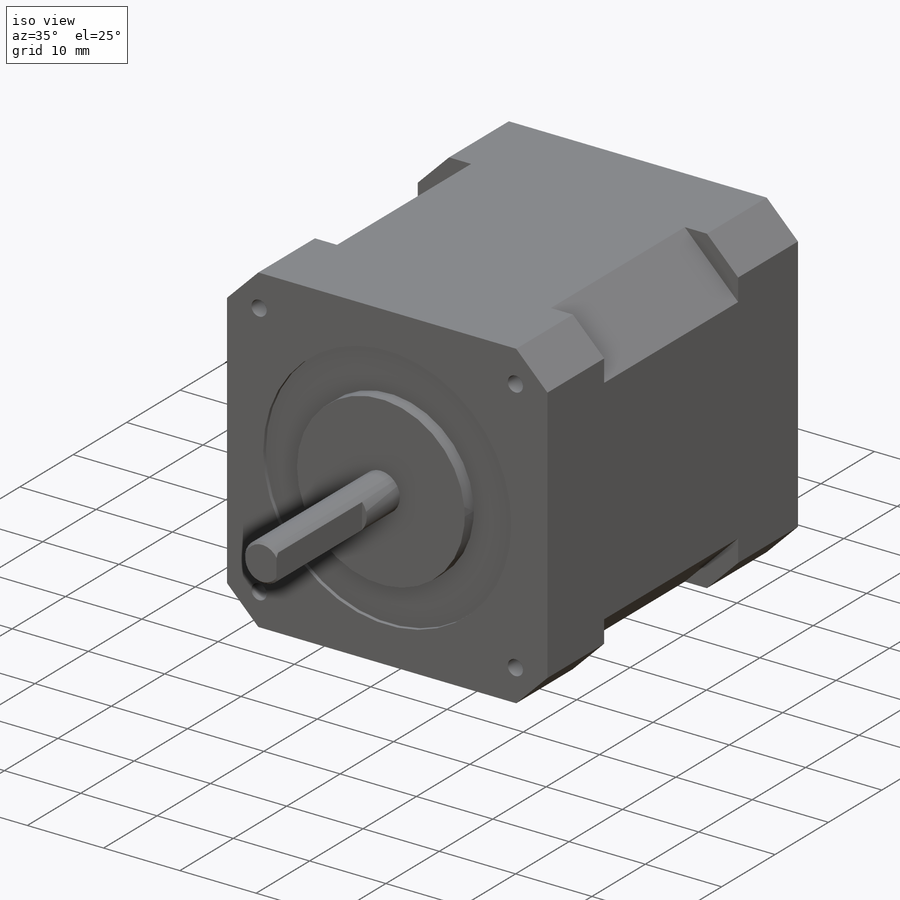
[diagram: iso view]
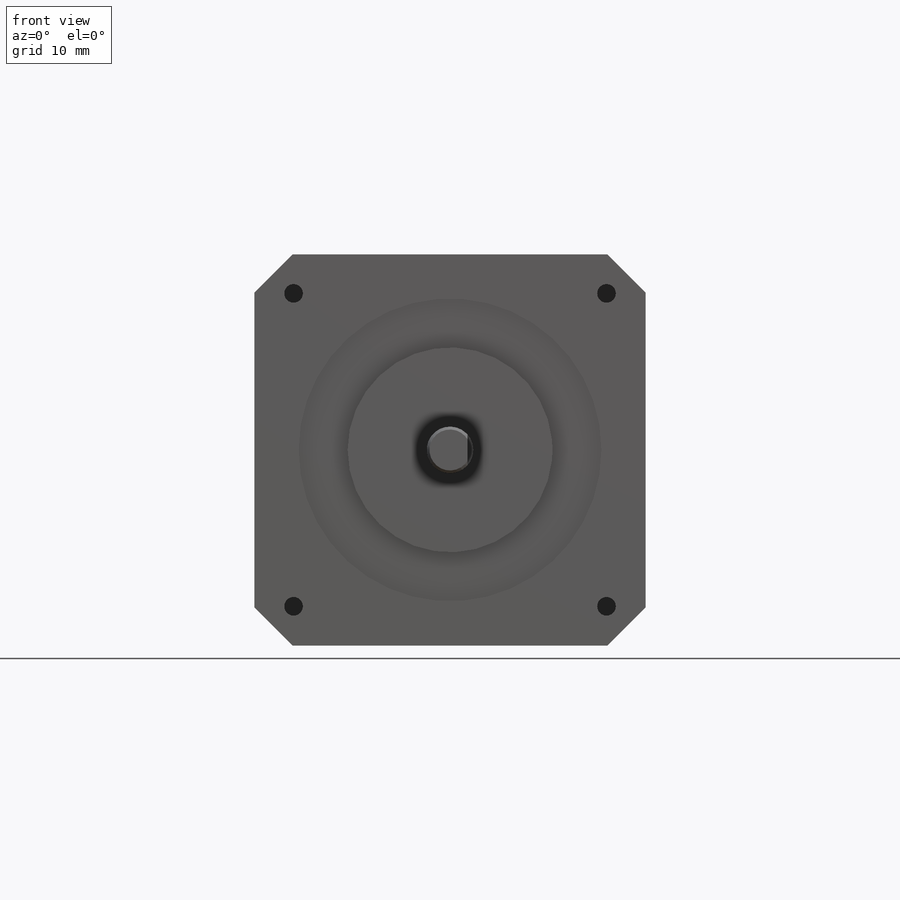
[diagram: front view]
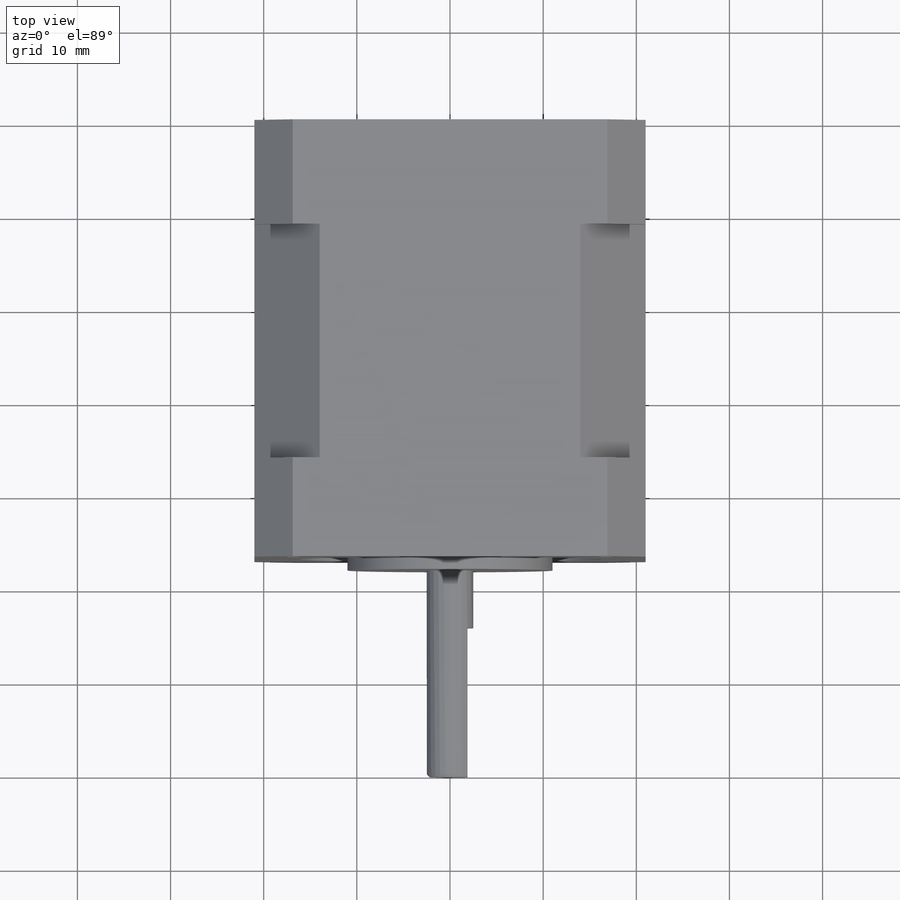
[diagram: top view]
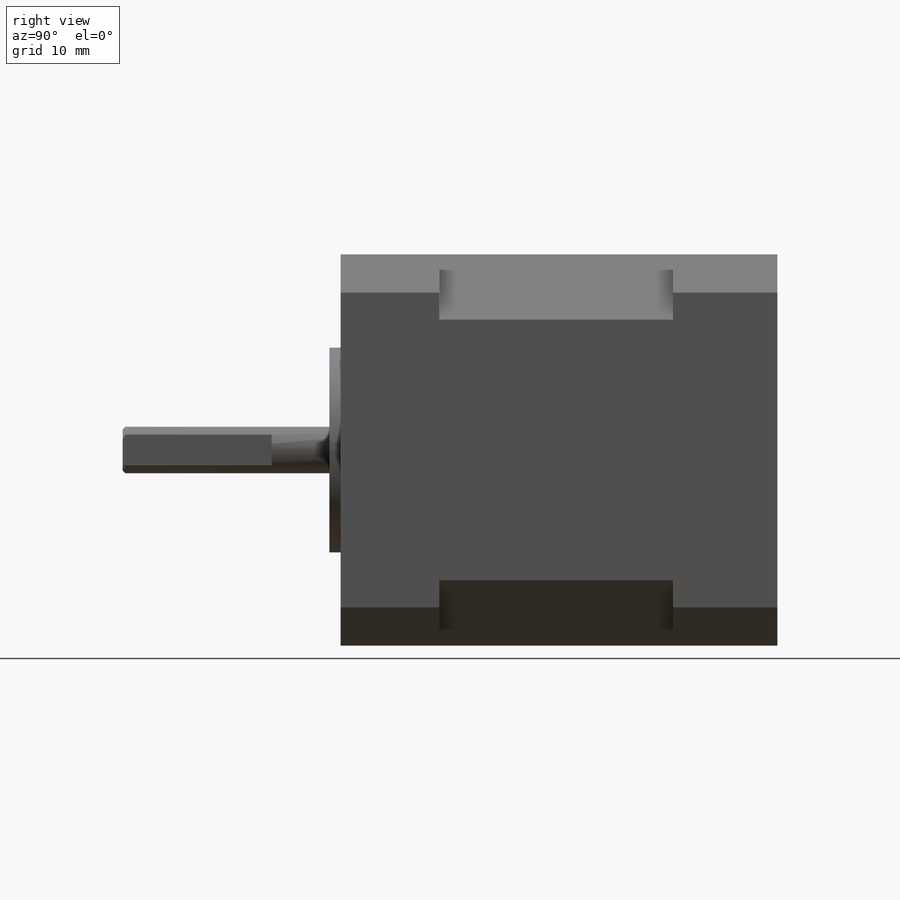
[diagram: right view]
SOLIDWORKS PART (.sldprt)
format: sldprt  version: not decoded by parser v0  size: 262,144 bytes
history: native  units: mm
features: sketch x8, extrude x5, plane x3, cut_extrude x3, material x1, chamfer x1 (+8 scaffold rows collapsed)
feature tree (29):
  scaffold x8  (default folders/planes/origin — collapsed)
  material  "Matériau <non spécifié>"
  plane  "Plan de face"
  plane  "Plan de dessus"
  plane  "Plan de droite"
  sketch  "Esquisse1"  dims[c1.D1=42.0mm c1.D2=16.9mm c1.D3=42.0mm c1.D4=16.9mm c1.D5=33.8mm c2.D1=21.0mm c2.D3=21.0mm]
  extrude  "Boss.-Extru.1"  Depth=11.2mm
  sketch  "Esquisse2"  dims[D1=14.0mm D2=14.0mm]
  extrude  "Boss.-Extru.2"  Depth=25.1mm
  sketch  "Esquisse3"
  extrude  "Boss.-Extru.3"  Depth=10.6mm
  sketch  "Esquisse4"  dims[D1=32.5mm]
  cut_extrude  "Enlèv. mat.-Extru.1"  Depth=0.5mm
  sketch  "Esquisse5"  dims[D1=22.0mm]
  extrude  "Boss.-Extru.4"  Depth=1.7mm
  sketch  "Esquisse6"  dims[D1=5.0mm]
  extrude  "Boss.-Extru.5"  Depth=22.2mm
  chamfer  "Chanfrein1"  Distance=0.3mm Angle=45deg
  sketch  "Esquisse7"  dims[D1=3.3mm]
  cut_extrude  "Enlèv. mat.-Extru.2"  Depth=16mm
  sketch  "Esquisse8"  dims[c1.D1=2.0mm c1.D2=28.6mm c1.D3=28.6mm c2.D2=28.6mm c2.D3=28.6mm c2.D4=6.7mm c3.D2=4.2mm c3.D3=4.2mm c3.D4=33.6mm]
  cut_extrude  "Enlèv. mat.-Extru.3"  Depth=10mm
decode coverage: 16 of 17 modeling features carry decoded parameters
note: suppression state not decoded; provenance and decode notes live in map.json
